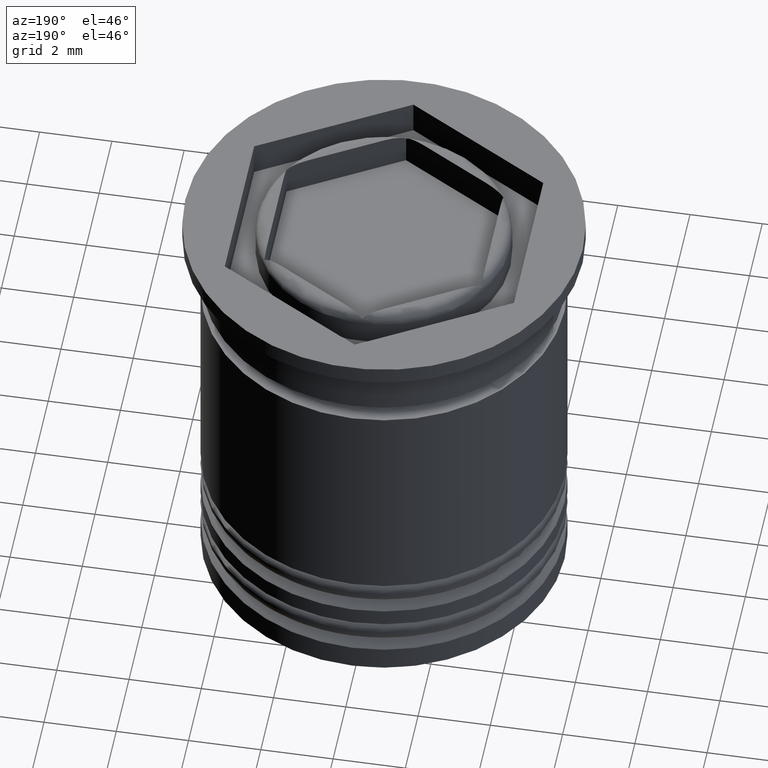
[diagram: clean part render]
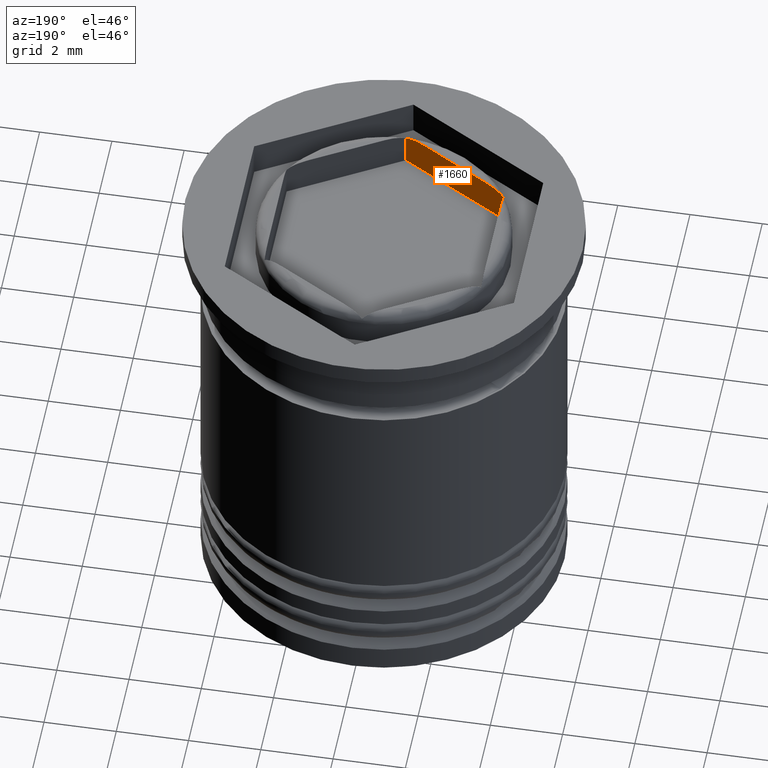
[diagram: same view with one face highlighted and labeled with its STEP entity id]
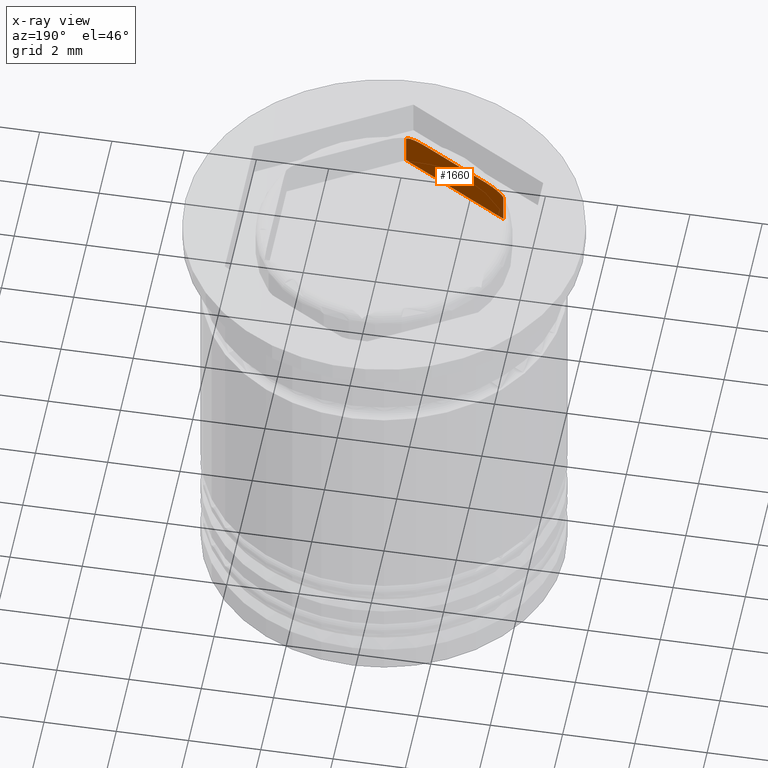
[diagram: x-ray of the same camera — body ghosted, the highlighted face saturated]
A machine part, auxiliary view. The second image highlights one B-rep face of the part: STEP entity #1660.
The next image is the same camera in x-ray: the body ghosted, the highlighted face saturated — about 0% of this face is hidden behind the body in this view.
In plain terms, the highlighted planar face has unit normal (-0.5, -0.866, 0).
Its self-contained STEP definition (entity closure, byte-faithful):
#66 = CARTESIAN_POINT ( 'NONE',  ( -3.000000000000000000, -1.732050807568877415, -1.000000000000000888 ) ) ;
#82 = VECTOR ( 'NONE', #1049, 1000.000000000000227 ) ;
#104 = CARTESIAN_POINT ( 'NONE',  ( -3.000000000000000000, -1.732050807568877637, -0.1576963216159549264 ) ) ;
#108 = CARTESIAN_POINT ( 'NONE',  ( -2.558564483669223844, -1.986913721752314066, 8.548680020164027158E-16 ) ) ;
#124 = CARTESIAN_POINT ( 'NONE',  ( -0.3474241502227461420, -3.263516188483676306, -0.006590008935845222127 ) ) ;
#150 = VERTEX_POINT ( 'NONE', #889 ) ;
#160 = DIRECTION ( 'NONE',  ( -0.8660254037844387076, 0.4999999999999999445, 0.000000000000000000 ) ) ;
#170 = EDGE_CURVE ( 'NONE', #150, #819, #1554, .T. ) ;
#226 = DIRECTION ( 'NONE',  ( 0.8660254037844385966, -0.4999999999999998890, 0.000000000000000000 ) ) ;
#264 = CARTESIAN_POINT ( 'NONE',  ( -0.1638830919324019142, -3.369483667894954237, -0.05305027761685780774 ) ) ;
#326 = VECTOR ( 'NONE', #1256, 1000.000000000000000 ) ;
#333 = DIRECTION ( 'NONE',  ( -0.4999999999999999445, -0.8660254037844387076, 0.000000000000000000 ) ) ;
#339 = CARTESIAN_POINT ( 'NONE',  ( -3.000000000000000000, -1.732050807568877637, -10.16515138991168321 ) ) ;
#408 = CARTESIAN_POINT ( 'NONE',  ( -0.5356349239007038854, -3.154852647636318785, 0.000000000000000000 ) ) ;
#438 = VERTEX_POINT ( 'NONE', #104 ) ;
#500 = B_SPLINE_CURVE_WITH_KNOTS ( 'NONE', 3,
 ( #408, #877, #124, #2046, #264, #1181, #898, #1543 ),
 .UNSPECIFIED., .F., .F.,
 ( 4, 2, 2, 4 ),
 ( 8.766002519126559474E-19, 0.0003251077594065934252, 0.0004876616391098899752, 0.0006502155188131865252 ),
 .UNSPECIFIED. ) ;
#504 = ORIENTED_EDGE ( 'NONE', *, *, #1003, .T. ) ;
#565 = CARTESIAN_POINT ( 'NONE',  ( -2.965006714095214768, -1.752254190605834205, -0.1202008320270840647 ) ) ;
#576 = CARTESIAN_POINT ( 'NONE',  ( -2.464365076099296559, -2.041299775070313238, 0.000000000000000000 ) ) ;
#641 = ORIENTED_EDGE ( 'NONE', *, *, #2041, .T. ) ;
#715 = CARTESIAN_POINT ( 'NONE',  ( -3.000000000000000000, -1.732050807568877637, 0.000000000000000000 ) ) ;
#722 = CARTESIAN_POINT ( 'NONE',  ( -2.790909596778845980, -1.852769208153577596, -0.03872241999869845130 ) ) ;
#724 = LINE ( 'NONE', #715, #82 ) ;
#780 = ORIENTED_EDGE ( 'NONE', *, *, #170, .F. ) ;
#819 = VERTEX_POINT ( 'NONE', #1575 ) ;
#877 = CARTESIAN_POINT ( 'NONE',  ( -0.4414950139516391481, -3.209204349986899629, -9.529120656610878815E-19 ) ) ;
#889 = CARTESIAN_POINT ( 'NONE',  ( -4.336808689942017736E-16, -3.464101615137754386, -1.000000000000000888 ) ) ;
#898 = CARTESIAN_POINT ( 'NONE',  ( -0.03488713331826946706, -3.443959519325197061, -0.1203145750809051784 ) ) ;
#911 = CARTESIAN_POINT ( 'NONE',  ( -2.836041517829999137, -1.826712281385650449, -0.05299204151133360408 ) ) ;
#939 = ORIENTED_EDGE ( 'NONE', *, *, #1053, .T. ) ;
#959 = EDGE_LOOP ( 'NONE', ( #1965, #939, #780, #1012, #641, #504 ) ) ;
#1003 = EDGE_CURVE ( 'NONE', #438, #1076, #1434, .T. ) ;
#1012 = ORIENTED_EDGE ( 'NONE', *, *, #1476, .T. ) ;
#1049 = DIRECTION ( 'NONE',  ( 0.8660254037844385966, -0.4999999999999998890, 0.000000000000000000 ) ) ;
#1053 = EDGE_CURVE ( 'NONE', #1228, #819, #500, .T. ) ;
#1076 = VERTEX_POINT ( 'NONE', #576 ) ;
#1105 = LINE ( 'NONE', #339, #326 ) ;
#1181 = CARTESIAN_POINT ( 'NONE',  ( -0.07687941269016497492, -3.419715265525947512, -0.09397729767315245175 ) ) ;
#1190 = CARTESIAN_POINT ( 'NONE',  ( -2.464365076099296559, -2.041299775070313238, 0.000000000000000000 ) ) ;
#1197 = LINE ( 'NONE', #1857, #1427 ) ;
#1228 = VERTEX_POINT ( 'NONE', #1486 ) ;
#1245 = VERTEX_POINT ( 'NONE', #66 ) ;
#1252 = VECTOR ( 'NONE', #1717, 1000.000000000000000 ) ;
#1256 = DIRECTION ( 'NONE',  ( -0.000000000000000000, -0.000000000000000000, 1.000000000000000000 ) ) ;
#1427 = VECTOR ( 'NONE', #160, 999.9999999999998863 ) ;
#1434 = B_SPLINE_CURVE_WITH_KNOTS ( 'NONE', 3,
 ( #1689, #565, #1701, #911, #722, #1531, #108, #1190 ),
 .UNSPECIFIED., .F., .F.,
 ( 4, 2, 2, 4 ),
 ( 5.114171419281513821E-19, 0.0001622701831771340003, 0.0003245403663542674585, 0.0006490807327085356760 ),
 .UNSPECIFIED. ) ;
#1476 = EDGE_CURVE ( 'NONE', #150, #1245, #1197, .T. ) ;
#1486 = CARTESIAN_POINT ( 'NONE',  ( -0.5356349239007038854, -3.154852647636318785, 0.000000000000000000 ) ) ;
#1491 = FACE_OUTER_BOUND ( 'NONE', #959, .T. ) ;
#1506 = AXIS2_PLACEMENT_3D ( 'NONE', #1644, #333, #226 ) ;
#1524 = CARTESIAN_POINT ( 'NONE',  ( -2.168404344971008868E-16, -3.464101615137754830, -10.16515138991168321 ) ) ;
#1531 = CARTESIAN_POINT ( 'NONE',  ( -2.653217324067876248, -1.932265878868588249, -0.006718191919573805217 ) ) ;
#1543 = CARTESIAN_POINT ( 'NONE',  ( -2.168404344971008868E-16, -3.464101615137754830, -0.1576963216159549264 ) ) ;
#1554 = LINE ( 'NONE', #1524, #1252 ) ;
#1575 = CARTESIAN_POINT ( 'NONE',  ( -2.168404344971008868E-16, -3.464101615137754830, -0.1576963216159549264 ) ) ;
#1644 = CARTESIAN_POINT ( 'NONE',  ( -3.000000000000000000, -1.732050807568877637, -10.16515138991168321 ) ) ;
#1660 = ADVANCED_FACE ( 'NONE', ( #1491 ), #1760, .F. ) ;
#1689 = CARTESIAN_POINT ( 'NONE',  ( -3.000000000000000000, -1.732050807568877637, -0.1576963216159549264 ) ) ;
#1701 = CARTESIAN_POINT ( 'NONE',  ( -2.923606528868643473, -1.776156598690896704, -0.09422876642215745335 ) ) ;
#1717 = DIRECTION ( 'NONE',  ( -0.000000000000000000, -0.000000000000000000, 1.000000000000000000 ) ) ;
#1760 = PLANE ( 'NONE',  #1506 ) ;
#1857 = CARTESIAN_POINT ( 'NONE',  ( -3.000000000000000000, -1.732050807568877637, -1.000000000000000888 ) ) ;
#1965 = ORIENTED_EDGE ( 'NONE', *, *, #1968, .T. ) ;
#1968 = EDGE_CURVE ( 'NONE', #1076, #1228, #724, .T. ) ;
#2041 = EDGE_CURVE ( 'NONE', #1245, #438, #1105, .T. ) ;
#2046 = CARTESIAN_POINT ( 'NONE',  ( -0.2090381022803962097, -3.343413410515279516, -0.03872414846243828201 ) ) ;